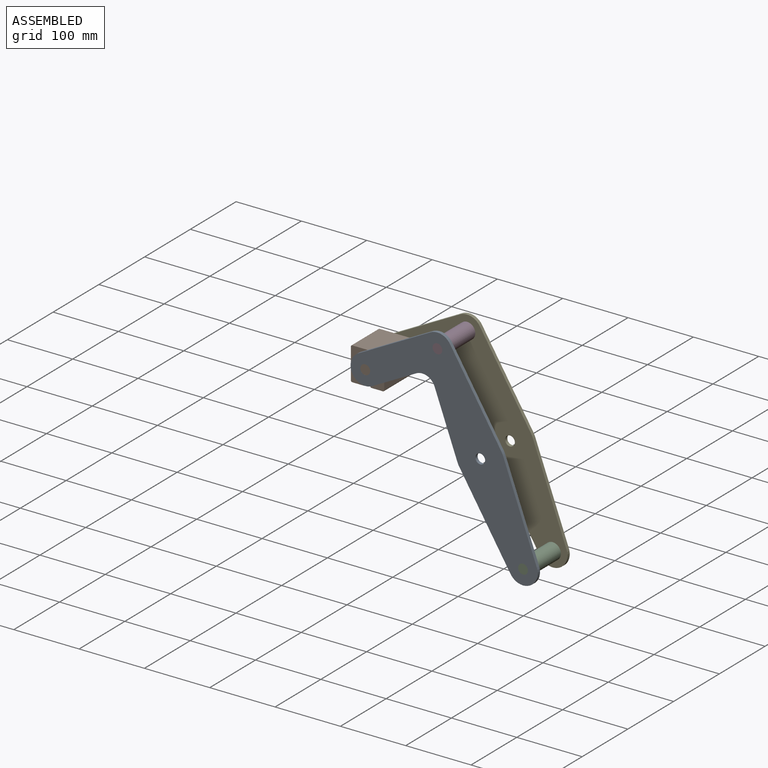
[diagram: assembled view]
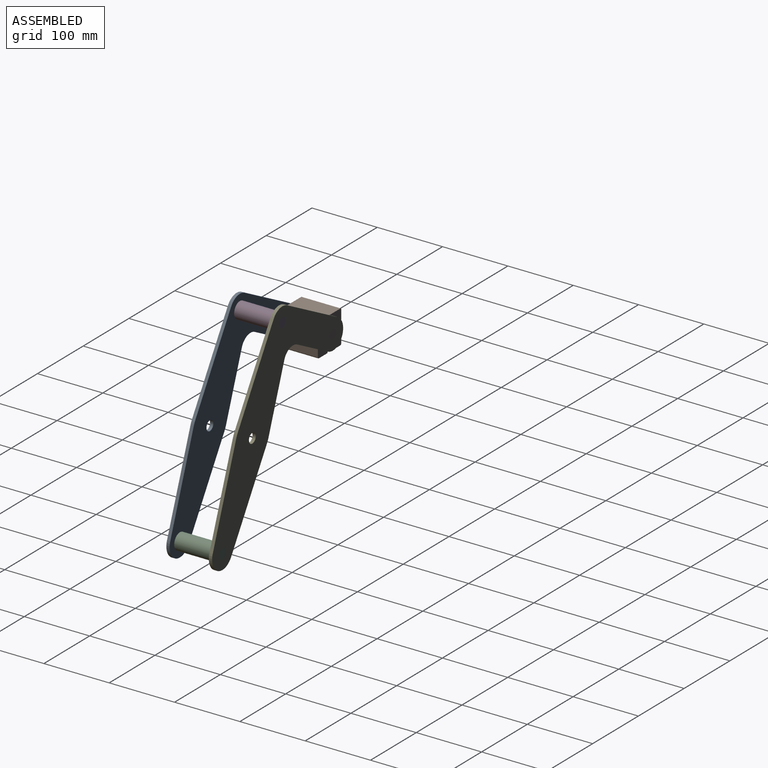
[diagram: assembled view, second angle]
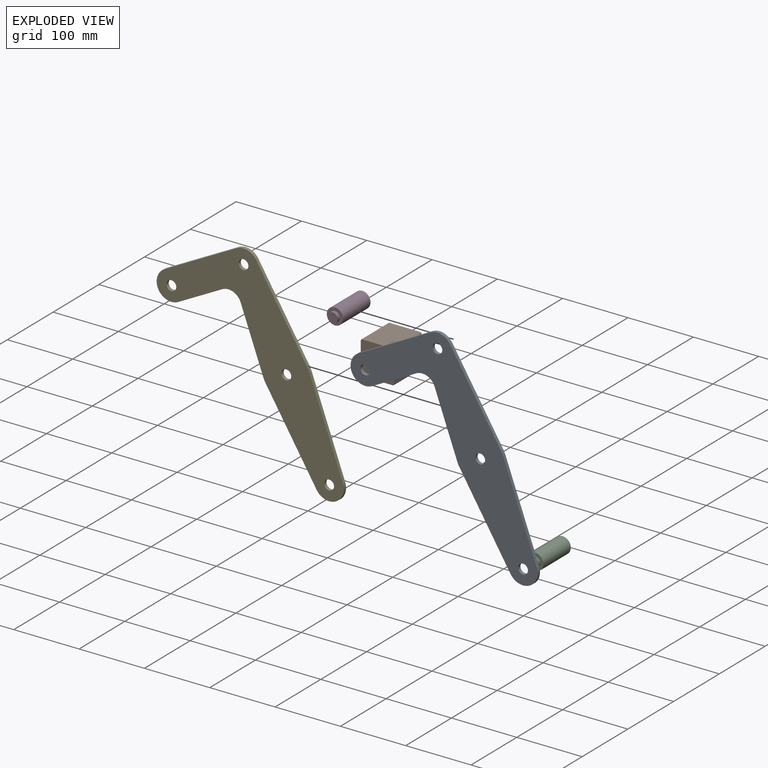
[diagram: exploded view]
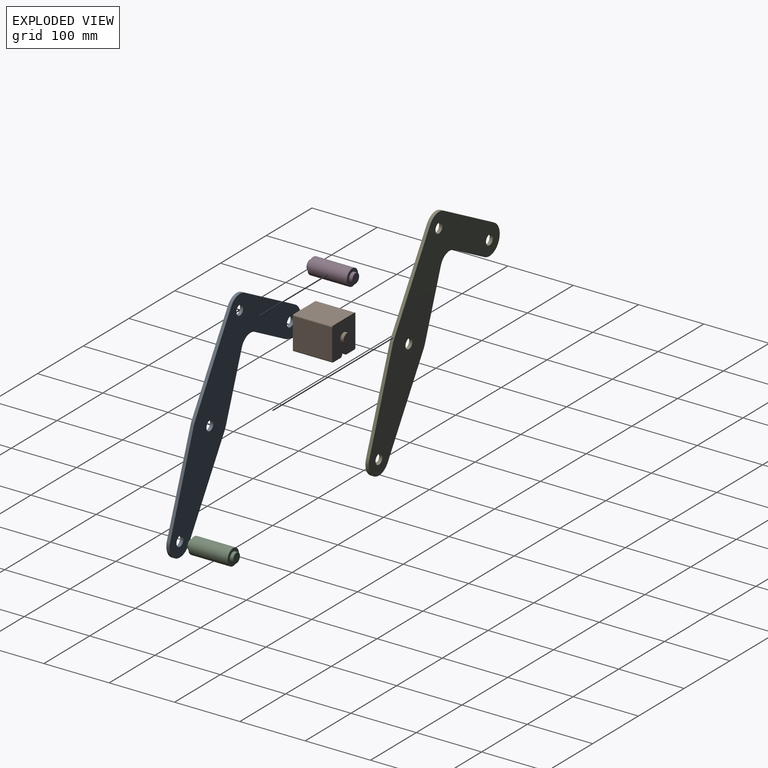
[diagram: exploded view, second angle]
ASSEMBLY  parts=5 mates=3
PART A: 18 faces, bbox 334.3x5x269.9 mm
  f0: cylinder r=20mm len=30mm, axis (0,1,0), area 170.6mm2, adj f1,f14,f16,f17
  f1: plane 81.68x58.68mm, normal (-0.81,0,-0.58), area 502.8mm2, adj f0,f2,f16,f17
  f2: cylinder r=37.5mm len=5.62mm, axis (0,1,0), area 37.6mm2, adj f1,f3,f16,f17
  f3: plane 109.46x101.46mm, normal (-0.68,0,-0.73), area 746.2mm2, adj f2,f4,f16,f17
  f4: cylinder r=22.5mm len=37.8mm, axis (0,1,0), area 330.9mm2, adj f3,f5,f16,f17
  f5: plane 121.21x87.08mm, normal (0.81,0,0.58), area 746.2mm2, adj f4,f6,f16,f17
  f6: cylinder r=37.5mm len=5.62mm, axis (0,1,0), area 37.6mm2, adj f5,f7,f16,f17
  f7: plane 109.46x101.46mm, normal (0.68,0,0.73), area 746.2mm2, adj f6,f8,f16,f17
  f8: cylinder r=22.5mm len=30.77mm, axis (0,1,0), area 169.4mm2, adj f7,f9,f16,f17
  f9: plane 90.75x85.96mm, normal (-0.69,0,0.73), area 625mm2, adj f8,f10,f16,f17
  f10: cylinder r=22.5mm len=38.84mm, axis (0,1,0), area 353.4mm2, adj f9,f14,f16,f17
  f11: cylinder r=7.5mm len=15mm, axis (0,1,0), area 235.6mm2, adj f16,f17
  f12: cylinder r=7.5mm len=15mm, axis (0,1,0), area 235.6mm2, adj f16,f17
  f13: cylinder r=7.5mm len=15mm, axis (0,1,0), area 235.6mm2, adj f16,f17
  f14: plane 55.41x52.48mm, normal (0.69,0,-0.73), area 381.6mm2, adj f0,f10,f16,f17
  f15: cylinder r=7.5mm len=15mm, axis (0,1,0), area 235.6mm2, adj f16,f17
  f16: plane 334.27x269.92mm, normal (0,-1,0), area 24567.6mm2, adj f0,f1,f2,f3,f4,f5,f6,f7
  f17: plane 334.27x269.92mm, normal (0,1,0), area 24567.6mm2, adj f0,f1,f2,f3,f4,f5,f6,f7
PART B: 18 faces, bbox 51x70x51 mm
  f0: plane 60x18.5mm, normal (0,0,-1), area 1110mm2, adj f4,f5,f10,f13
  f1: plane 60x47mm, normal (1,0,0), area 2820mm2, adj f4,f10,f13,f14
  f2: plane 60x47mm, normal (0,0,1), area 2820mm2, adj f4,f10,f14,f15
  f3: plane 60x47mm, normal (-1,0,0), area 2820mm2, adj f4,f10,f15,f16
  f4: plane 51x51mm, normal (0,-1,0), area 2374.4mm2, adj f0,f1,f2,f3,f5,f6,f7,f9
  f5: plane 60x6.42mm, normal (-0.89,0,-0.45), area 430.8mm2, adj f0,f4,f10,f17
  f6: plane 60x18.5mm, normal (0,0,-1), area 1110mm2, adj f4,f7,f10,f16
  f7: plane 60x6.42mm, normal (0.89,0,-0.45), area 430.8mm2, adj f4,f6,f10,f17
  f8: plane 15x15mm, normal (0,-1,0), area 176.7mm2, adj f9
  f9: cylinder r=7.5mm len=15mm, axis (0,1,0), area 235.6mm2, adj f4,f8
  f10: plane 51x51mm, normal (0,1,0), area 2374.4mm2, adj f0,f1,f2,f3,f5,f6,f7,f12
  f11: plane 15x15mm, normal (0,1,0), area 176.7mm2, adj f12
  f12: cylinder r=7.5mm len=15mm, axis (0,-1,0), area 235.6mm2, adj f10,f11
  f13: cylinder r=2mm len=60mm, axis (0,1,0), area 188.5mm2, adj f0,f1,f4,f10
  f14: cylinder r=2mm len=60mm, axis (0,-1,0), area 188.5mm2, adj f1,f2,f4,f10
  f15: cylinder r=2mm len=60mm, axis (0,1,0), area 188.5mm2, adj f2,f3,f4,f10
  f16: cylinder r=2mm len=60mm, axis (0,-1,0), area 188.5mm2, adj f3,f4,f6,f10
  f17: cylinder r=2mm len=60mm, axis (0,-1,0), area 265.7mm2, adj f4,f5,f7,f10
PART C: 7 faces, bbox 25x70x25 mm
  f0: cylinder r=12.5mm len=60mm, axis (0,-1,0), area 4712.4mm2, adj f2,f5
  f1: cylinder r=7.5mm len=15mm, axis (0,1,0), area 235.6mm2, adj f2,f3
  f2: plane 25x25mm, normal (0,-1,0), area 314.2mm2, adj f0,f1
  f3: plane 15x15mm, normal (0,-1,0), area 176.7mm2, adj f1
  f4: cylinder r=7.5mm len=15mm, axis (0,-1,0), area 235.6mm2, adj f5,f6
  f5: plane 25x25mm, normal (0,1,0), area 314.2mm2, adj f0,f4
  f6: plane 15x15mm, normal (0,1,0), area 176.7mm2, adj f4
PART D: same geometry as C
PART E: same geometry as A
PLACE A rot(axis=(0,1,0),15.5deg) t=(-9.66,-32.67,-1.03)mm fixed
PLACE B t=(4.37,-32.67,48.86)mm
PLACE C rot(axis=(0,1,0),15.5deg) t=(121.43,-32.67,-270.87)mm
PLACE D rot(axis=(0,1,0),15.5deg) t=(-9.66,-32.67,-1.03)mm
PLACE E rot(axis=(0,1,0),15.5deg) t=(-9.66,32.33,-1.03)mm
MATE revolute B.f9 <-> A.f10  axis (0,-1,0) through (-185.65,-37.67,75.36)mm
MATE fastened C.f0 <-> A.f4  axis (0,-1,0) through (55.89,-32.67,-135.95)mm
MATE fastened E.f8 <-> D.f0  axis (0,1,0) through (-75.2,32.33,133.9)mm
